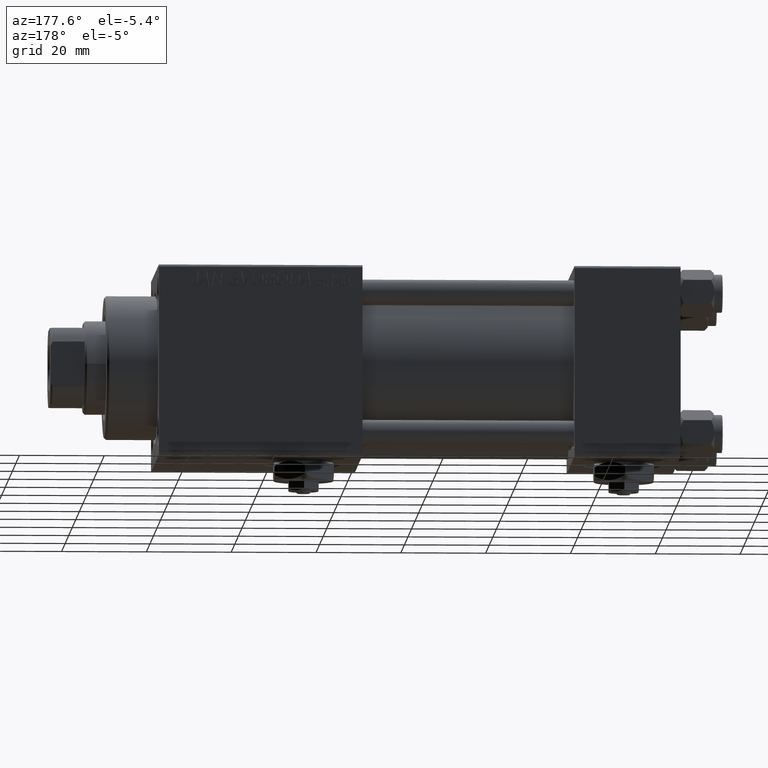
[diagram: clean part render]
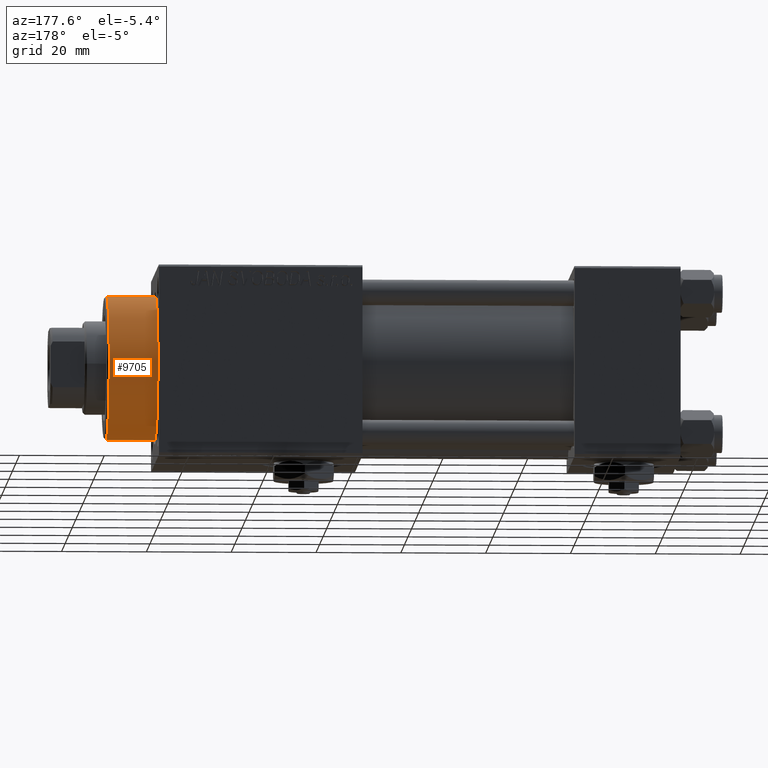
[diagram: same view with one face highlighted and labeled with its STEP entity id]
A machine part, auxiliary view. The second image highlights one B-rep face of the part: STEP entity #9705.
In plain terms, the highlighted cylindrical surface (partial cylindrical patch) has radius 17 mm, axis along (-1, -0, -0).
Its self-contained STEP definition (entity closure, byte-faithful):
#93 = EDGE_CURVE ( 'NONE', #470, #36874, #9973, .T. ) ;
#470 = VERTEX_POINT ( 'NONE', #42592 ) ;
#1315 = CIRCLE ( 'NONE', #30759, 17.00000000000000000 ) ;
#4323 = CARTESIAN_POINT ( 'NONE',  ( 0.000000000000000000, 0.000000000000000000, 40.19999999999999574 ) ) ;
#5852 = ORIENTED_EDGE ( 'NONE', *, *, #16499, .T. ) ;
#8012 = AXIS2_PLACEMENT_3D ( 'NONE', #24581, #19854, #8254 ) ;
#8254 = DIRECTION ( 'NONE',  ( -1.000000000000000000, 0.000000000000000000, 0.000000000000000000 ) ) ;
#8547 = DIRECTION ( 'NONE',  ( 0.000000000000000000, 0.000000000000000000, -1.000000000000000000 ) ) ;
#9573 = DIRECTION ( 'NONE',  ( -0.000000000000000000, -0.000000000000000000, -1.000000000000000000 ) ) ;
#9705 = ADVANCED_FACE ( 'NONE', ( #44126 ), #28277, .T. ) ;
#9973 = LINE ( 'NONE', #24993, #48188 ) ;
#10310 = EDGE_CURVE ( 'NONE', #36874, #14197, #1315, .T. ) ;
#10726 = CARTESIAN_POINT ( 'NONE',  ( -17.00000000000000000, 0.000000000000000000, 40.19999999999999574 ) ) ;
#13239 = ORIENTED_EDGE ( 'NONE', *, *, #93, .T. ) ;
#13588 = DIRECTION ( 'NONE',  ( 1.000000000000000000, 0.000000000000000000, 0.000000000000000000 ) ) ;
#14197 = VERTEX_POINT ( 'NONE', #34383 ) ;
#15519 = CARTESIAN_POINT ( 'NONE',  ( 0.000000000000000000, 0.000000000000000000, 28.69999999999999929 ) ) ;
#16499 = EDGE_CURVE ( 'NONE', #30559, #470, #45384, .T. ) ;
#17226 = LINE ( 'NONE', #25123, #36302 ) ;
#19854 = DIRECTION ( 'NONE',  ( -0.000000000000000000, -0.000000000000000000, -1.000000000000000000 ) ) ;
#20941 = ORIENTED_EDGE ( 'NONE', *, *, #10310, .T. ) ;
#23432 = AXIS2_PLACEMENT_3D ( 'NONE', #4323, #8547, #24608 ) ;
#24581 = CARTESIAN_POINT ( 'NONE',  ( 0.000000000000000000, 0.000000000000000000, 40.70000000000000284 ) ) ;
#24608 = DIRECTION ( 'NONE',  ( 1.000000000000000000, 0.000000000000000000, 0.000000000000000000 ) ) ;
#24993 = CARTESIAN_POINT ( 'NONE',  ( 17.00000000000000000, 2.081899558550500280E-15, 40.70000000000000284 ) ) ;
#25123 = CARTESIAN_POINT ( 'NONE',  ( -17.00000000000000000, 0.000000000000000000, 40.70000000000000284 ) ) ;
#25958 = DIRECTION ( 'NONE',  ( 0.000000000000000000, 0.000000000000000000, 1.000000000000000000 ) ) ;
#26663 = EDGE_CURVE ( 'NONE', #30559, #14197, #17226, .T. ) ;
#26798 = ORIENTED_EDGE ( 'NONE', *, *, #26663, .F. ) ;
#28277 = CYLINDRICAL_SURFACE ( 'NONE', #8012, 17.00000000000000000 ) ;
#29066 = CARTESIAN_POINT ( 'NONE',  ( 17.00000000000000000, 2.081899558550500280E-15, 28.69999999999999929 ) ) ;
#30559 = VERTEX_POINT ( 'NONE', #10726 ) ;
#30759 = AXIS2_PLACEMENT_3D ( 'NONE', #15519, #25958, #13588 ) ;
#34383 = CARTESIAN_POINT ( 'NONE',  ( -17.00000000000000000, 0.000000000000000000, 28.69999999999999929 ) ) ;
#36302 = VECTOR ( 'NONE', #9573, 1000.000000000000000 ) ;
#36874 = VERTEX_POINT ( 'NONE', #29066 ) ;
#42001 = EDGE_LOOP ( 'NONE', ( #5852, #13239, #20941, #26798 ) ) ;
#42592 = CARTESIAN_POINT ( 'NONE',  ( 17.00000000000000000, 2.081899558550500280E-15, 40.19999999999999574 ) ) ;
#44126 = FACE_OUTER_BOUND ( 'NONE', #42001, .T. ) ;
#45068 = DIRECTION ( 'NONE',  ( -0.000000000000000000, -0.000000000000000000, -1.000000000000000000 ) ) ;
#45384 = CIRCLE ( 'NONE', #23432, 17.00000000000000000 ) ;
#48188 = VECTOR ( 'NONE', #45068, 1000.000000000000000 ) ;